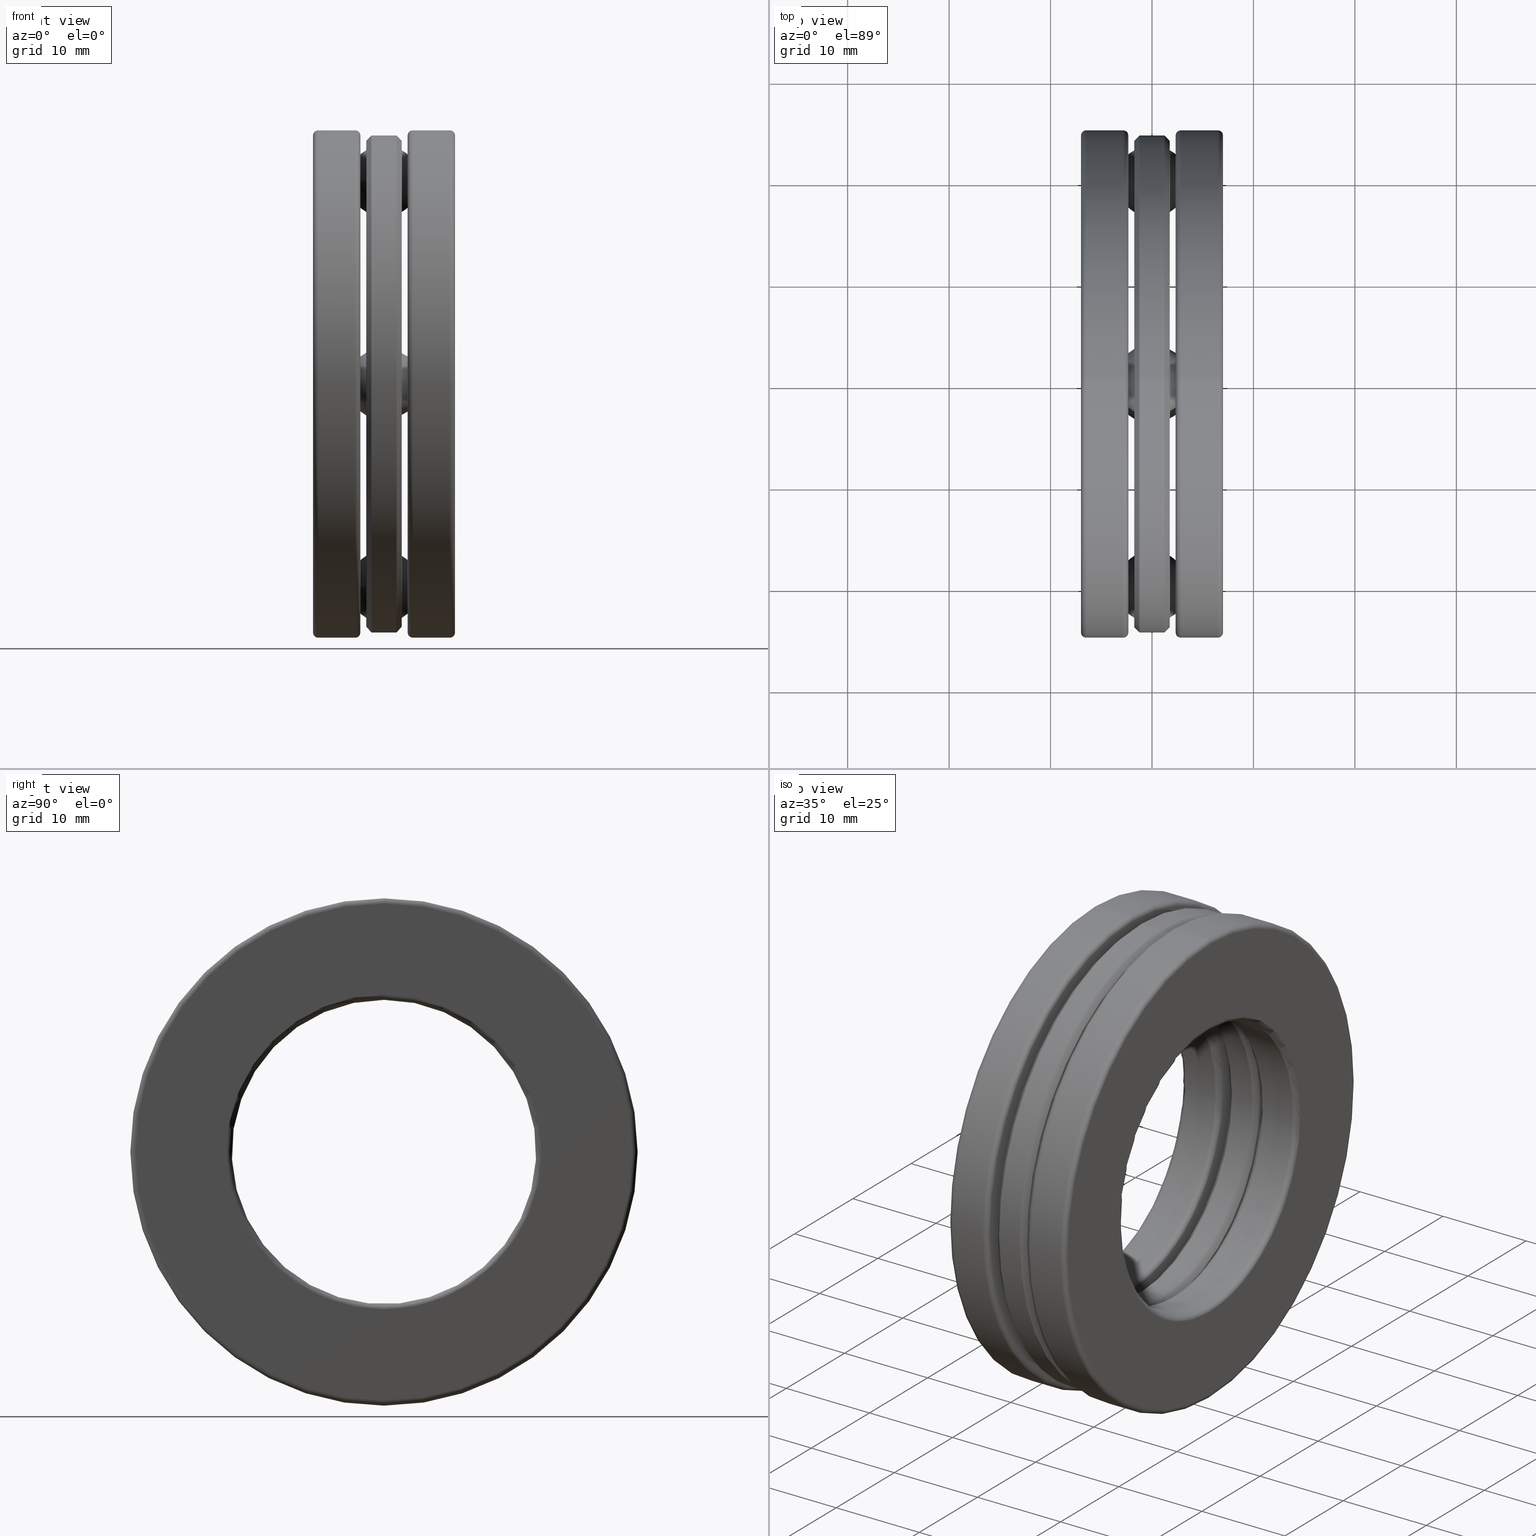
[diagram: canonical four-view strip — front | top / right | iso, engineering-drawing reading convention]
A machine part, canonical four-view strip (front | top / right | iso — engineering-drawing reading convention). The complete STEP part file that produces these views, byte-faithful:
ISO-10303-21;
HEADER;
FILE_DESCRIPTION (( 'STEP AP203' ),
    '1' );
FILE_NAME ('2906-ABB.step',
    '2017-03-07T16:42:57',
    ( '' ),
    ( '' ),
    'SwSTEP 2.0',
    'SolidWorks 2017',
    '' );
FILE_SCHEMA (( 'CONFIG_CONTROL_DESIGN' ));
ENDSEC;

DATA;
#1 = AXIS2_PLACEMENT_3D ( 'NONE', #122, #575, #335 ) ;
#2 = CONICAL_SURFACE ( 'NONE', #286, 0.9444999999999999000, 0.7853981633974492800 ) ;
#3 = DIRECTION ( 'NONE',  ( 0.0000000000000000000, 0.0000000000000000000, 1.000000000000000000 ) ) ;
#4 = ADVANCED_FACE ( 'NONE', ( #150, #790 ), #740, .T. ) ;
#5 = CARTESIAN_POINT ( 'NONE',  ( -0.2555000000000000000, 0.0000000000000000000, 0.5905000000000000200 ) ) ;
#6 = AXIS2_PLACEMENT_3D ( 'NONE', #84, #599, #651 ) ;
#7 = FACE_OUTER_BOUND ( 'NONE', #177, .T. ) ;
#8 = ORIENTED_EDGE ( 'NONE', *, *, #712, .F. ) ;
#9 = FACE_BOUND ( 'NONE', #100, .T. ) ;
#10 = ADVANCED_FACE ( 'NONE', ( #684, #309 ), #226, .T. ) ;
#11 = DIRECTION ( 'NONE',  ( 0.0000000000000000000, 1.000000000000000000, -1.032657317192676000E-014 ) ) ;
#12 = DIRECTION ( 'NONE',  ( 0.0000000000000000000, 0.0000000000000000000, 1.000000000000000000 ) ) ;
#13 = DIRECTION ( 'NONE',  ( -1.000000000000000000, -0.0000000000000000000, -0.0000000000000000000 ) ) ;
#14 = PERSON_AND_ORGANIZATION ( #619, #793 ) ;
#15 = AXIS2_PLACEMENT_3D ( 'NONE', #617, #244, #502 ) ;
#16 = EDGE_CURVE ( 'NONE', #129, #129, #481, .T. ) ;
#17 = FACE_OUTER_BOUND ( 'NONE', #655, .T. ) ;
#18 = ORIENTED_EDGE ( 'NONE', *, *, #295, .T. ) ;
#19 = ORIENTED_EDGE ( 'NONE', *, *, #206, .T. ) ;
#20 = DIRECTION ( 'NONE',  ( 0.0000000000000000000, 0.0000000000000000000, -1.000000000000000000 ) ) ;
#21 = CYLINDRICAL_SURFACE ( 'NONE', #689, 0.1455000000000001000 ) ;
#22 = ORIENTED_EDGE ( 'NONE', *, *, #351, .T. ) ;
#23 = VERTEX_POINT ( 'NONE', #521 ) ;
#24 = CARTESIAN_POINT ( 'NONE',  ( -0.06887499999999999200, -0.1455000000000028500, -0.7874999999999994200 ) ) ;
#25 = CARTESIAN_POINT ( 'NONE',  ( -0.09183516999999991000, 0.0000000000000000000, 0.6104999999999999300 ) ) ;
#26 = ADVANCED_FACE ( 'NONE', ( ), #127, .T. ) ;
#27 = ADVANCED_BREP_SHAPE_REPRESENTATION ( '2906-ABB', ( #463, #500, #522, #66, #268, #604, #411, #544 ), #340 ) ;
#28 = AXIS2_PLACEMENT_3D ( 'NONE', #203, #591, #467 ) ;
#29 = PLANE ( 'NONE',  #562 ) ;
#30 = DIRECTION ( 'NONE',  ( 0.0000000000000000000, 0.0000000000000000000, 1.000000000000000000 ) ) ;
#31 = CIRCLE ( 'NONE', #598, 0.6105000000000000400 ) ;
#32 = AXIS2_PLACEMENT_3D ( 'NONE', #266, #514, #132 ) ;
#33 = VERTEX_POINT ( 'NONE', #349 ) ;
#34 = ORIENTED_EDGE ( 'NONE', *, *, #773, .F. ) ;
#35 = CIRCLE ( 'NONE', #686, 0.9645000000000001400 ) ;
#36 = CARTESIAN_POINT ( 'NONE',  ( -0.09183516999999991000, -1.771749469719744800E-017, 0.0000000000000000000 ) ) ;
#37 = CARTESIAN_POINT ( 'NONE',  ( -0.06887500000000003300, 0.0000000000000000000, 0.0000000000000000000 ) ) ;
#38 = FACE_BOUND ( 'NONE', #278, .T. ) ;
#39 = DIRECTION ( 'NONE',  ( 0.0000000000000000000, 0.0000000000000000000, 1.000000000000000000 ) ) ;
#40 = SPHERICAL_SURFACE ( 'NONE', #789, 0.1405000000000001200 ) ;
#41 = EDGE_LOOP ( 'NONE', ( #57 ) ) ;
#42 = EDGE_LOOP ( 'NONE', ( #460 ) ) ;
#43 = DIRECTION ( 'NONE',  ( 0.0000000000000000000, 0.0000000000000000000, 1.000000000000000000 ) ) ;
#44 = AXIS2_PLACEMENT_3D ( 'NONE', #246, #567, #685 ) ;
#45 = DIRECTION ( 'NONE',  ( 1.000000000000000000, 0.0000000000000000000, 0.0000000000000000000 ) ) ;
#46 = EDGE_LOOP ( 'NONE', ( #220 ) ) ;
#47 = EDGE_LOOP ( 'NONE', ( #398 ) ) ;
#48 = CIRCLE ( 'NONE', #750, 0.1455000000000001000 ) ;
#49 = VERTEX_POINT ( 'NONE', #529 ) ;
#50 = ORIENTED_EDGE ( 'NONE', *, *, #166, .T. ) ;
#51 = CARTESIAN_POINT ( 'NONE',  ( 0.2755000000000001300, 1.063028421263425600E-016, 0.0000000000000000000 ) ) ;
#52 = AXIS2_PLACEMENT_3D ( 'NONE', #169, #795, #310 ) ;
#53 = PERSON_AND_ORGANIZATION ( #619, #793 ) ;
#54 = APPLICATION_PROTOCOL_DEFINITION ( 'international standard', 'config_control_design', 1994, #814 ) ;
#55 = AXIS2_PLACEMENT_3D ( 'NONE', #682, #45, #389 ) ;
#56 = SECURITY_CLASSIFICATION_LEVEL ( 'unclassified' ) ;
#57 = ORIENTED_EDGE ( 'NONE', *, *, #448, .F. ) ;
#58 = EDGE_CURVE ( 'NONE', #601, #601, #663, .T. ) ;
#59 = CARTESIAN_POINT ( 'NONE',  ( 0.06887500000000000600, -0.7874999999999999800, 0.1455000000000001000 ) ) ;
#60 = PERSON_AND_ORGANIZATION_ROLE ( 'classification_officer' ) ;
#61 = FACE_OUTER_BOUND ( 'NONE', #523, .T. ) ;
#62 = ORIENTED_EDGE ( 'NONE', *, *, #462, .F. ) ;
#63 = VERTEX_POINT ( 'NONE', #25 ) ;
#64 = CARTESIAN_POINT ( 'NONE',  ( -0.2555000000000000600, 0.0000000000000000000, 0.9845000000000001500 ) ) ;
#65 = EDGE_LOOP ( 'NONE', ( #19 ) ) ;
#66 = MANIFOLD_SOLID_BREP ( 'CirPattern4[1]', #373 ) ;
#67 = FACE_OUTER_BOUND ( 'NONE', #735, .T. ) ;
#68 = VERTEX_POINT ( 'NONE', #816 ) ;
#69 = AXIS2_PLACEMENT_3D ( 'NONE', #443, #109, #746 ) ;
#70 = CARTESIAN_POINT ( 'NONE',  ( 0.09183517000000039600, 0.0000000000000000000, 0.8938322695660685400 ) ) ;
#71 = CIRCLE ( 'NONE', #52, 0.6305000000000000600 ) ;
#72 = EDGE_LOOP ( 'NONE', ( #357 ) ) ;
#73 = CC_DESIGN_DATE_AND_TIME_ASSIGNMENT ( #89, #628, ( #381 ) ) ;
#74 = FACE_OUTER_BOUND ( 'NONE', #697, .T. ) ;
#75 = ADVANCED_FACE ( 'NONE', ( #822, #375 ), #21, .F. ) ;
#76 = TOROIDAL_SURFACE ( 'NONE', #392, 0.6105000000000000400, 0.01999999999999982000 ) ;
#77 = PLANE ( 'NONE',  #240 ) ;
#78 = EDGE_CURVE ( 'NONE', #586, #586, #364, .T. ) ;
#79 = CARTESIAN_POINT ( 'NONE',  ( 0.09183517000000042400, 0.0000000000000000000, 0.0000000000000000000 ) ) ;
#80 = EDGE_CURVE ( 'NONE', #400, #400, #525, .T. ) ;
#81 = FACE_OUTER_BOUND ( 'NONE', #272, .T. ) ;
#82 = EDGE_LOOP ( 'NONE', ( #121 ) ) ;
#83 = TOROIDAL_SURFACE ( 'NONE', #44, 0.9645000000000000200, 0.02000000000000002500 ) ;
#84 = CARTESIAN_POINT ( 'NONE',  ( 0.2755000000000001900, 0.0000000000000000000, 0.0000000000000000000 ) ) ;
#85 = ORIENTED_EDGE ( 'NONE', *, *, #462, .T. ) ;
#86 = CALENDAR_DATE ( 2017, 7, 3 ) ;
#87 = DIRECTION ( 'NONE',  ( 0.0000000000000000000, 0.0000000000000000000, 1.000000000000000000 ) ) ;
#88 = DIRECTION ( 'NONE',  ( -1.000000000000000000, -0.0000000000000000000, -0.0000000000000000000 ) ) ;
#89 = DATE_AND_TIME ( #322, #296 ) ;
#90 = AXIS2_PLACEMENT_3D ( 'NONE', #193, #391, #20 ) ;
#91 = CIRCLE ( 'NONE', #249, 0.6105000000000000400 ) ;
#92 = ADVANCED_FACE ( 'NONE', ( #678, #204 ), #393, .T. ) ;
#93 = DIRECTION ( 'NONE',  ( 0.0000000000000000000, -1.000000000000000000, 3.755117517064276800E-015 ) ) ;
#94 = PLANE ( 'NONE',  #625 ) ;
#95 = EDGE_LOOP ( 'NONE', ( #592 ) ) ;
#96 = AXIS2_PLACEMENT_3D ( 'NONE', #330, #262, #753 ) ;
#97 = ORIENTED_EDGE ( 'NONE', *, *, #347, .T. ) ;
#98 = CIRCLE ( 'NONE', #801, 0.5905000000000000200 ) ;
#99 = VERTEX_POINT ( 'NONE', #70 ) ;
#100 = EDGE_LOOP ( 'NONE', ( #277 ) ) ;
#101 = LENGTH_MEASURE_WITH_UNIT ( LENGTH_MEASURE( 0.02539999999999999900 ), #527 );
#102 = DIRECTION ( 'NONE',  ( -1.000000000000000000, -0.0000000000000000000, -0.0000000000000000000 ) ) ;
#103 = DIRECTION ( 'NONE',  ( 0.0000000000000000000, 0.0000000000000000000, 1.000000000000000000 ) ) ;
#104 = FACE_OUTER_BOUND ( 'NONE', #638, .T. ) ;
#105 =( CONVERSION_BASED_UNIT ( 'INCH', #101 ) LENGTH_UNIT ( ) NAMED_UNIT ( #666 ) );
#106 = FACE_OUTER_BOUND ( 'NONE', #552, .T. ) ;
#107 = DIRECTION ( 'NONE',  ( 0.0000000000000000000, 0.0000000000000000000, -1.000000000000000000 ) ) ;
#108 = DIRECTION ( 'NONE',  ( 0.0000000000000000000, 0.0000000000000000000, 1.000000000000000000 ) ) ;
#109 = DIRECTION ( 'NONE',  ( -1.000000000000000000, -0.0000000000000000000, -0.0000000000000000000 ) ) ;
#110 = CYLINDRICAL_SURFACE ( 'NONE', #300, 0.5905000000000000200 ) ;
#111 = AXIS2_PLACEMENT_3D ( 'NONE', #182, #674, #321 ) ;
#112 = VERTEX_POINT ( 'NONE', #297 ) ;
#113 = ORIENTED_EDGE ( 'NONE', *, *, #163, .F. ) ;
#114 = EDGE_CURVE ( 'NONE', #224, #224, #31, .T. ) ;
#115 = DIRECTION ( 'NONE',  ( 0.0000000000000000000, 0.0000000000000000000, 1.000000000000000000 ) ) ;
#116 = EDGE_CURVE ( 'NONE', #699, #699, #716, .T. ) ;
#117 =( NAMED_UNIT ( * ) PLANE_ANGLE_UNIT ( ) SI_UNIT ( $, .RADIAN. ) );
#118 = DIRECTION ( 'NONE',  ( 0.0000000000000000000, 0.0000000000000000000, 1.000000000000000000 ) ) ;
#119 = ORIENTED_EDGE ( 'NONE', *, *, #386, .F. ) ;
#120 = ORIENTED_EDGE ( 'NONE', *, *, #702, .F. ) ;
#121 = ORIENTED_EDGE ( 'NONE', *, *, #646, .T. ) ;
#122 = CARTESIAN_POINT ( 'NONE',  ( 0.06887500000000000600, 0.7874999999999999800, 0.0000000000000000000 ) ) ;
#123 = CARTESIAN_POINT ( 'NONE',  ( -0.1118351699999999700, 0.0000000000000000000, 0.0000000000000000000 ) ) ;
#124 = FACE_OUTER_BOUND ( 'NONE', #185, .T. ) ;
#125 = EDGE_LOOP ( 'NONE', ( #635 ) ) ;
#126 = VERTEX_POINT ( 'NONE', #818 ) ;
#127 = SPHERICAL_SURFACE ( 'NONE', #466, 0.1405000000000001200 ) ;
#128 = CC_DESIGN_APPROVAL ( #770, ( #381 ) ) ;
#129 = VERTEX_POINT ( 'NONE', #374 ) ;
#130 = APPROVAL_ROLE ( '' ) ;
#131 = DIRECTION ( 'NONE',  ( 0.0000000000000000000, 0.0000000000000000000, 1.000000000000000000 ) ) ;
#132 = DIRECTION ( 'NONE',  ( 0.0000000000000000000, 0.0000000000000000000, 1.000000000000000000 ) ) ;
#133 = CARTESIAN_POINT ( 'NONE',  ( 0.06887499999999999200, 0.0000000000000000000, 0.0000000000000000000 ) ) ;
#134 = AXIS2_PLACEMENT_3D ( 'NONE', #442, #191, #571 ) ;
#135 = APPLICATION_PROTOCOL_DEFINITION ( 'international standard', 'config_control_design', 1994, #751 ) ;
#136 = CYLINDRICAL_SURFACE ( 'NONE', #434, 0.9644999999999999100 ) ;
#137 = EDGE_LOOP ( 'NONE', ( #796 ) ) ;
#138 = APPROVAL_DATE_TIME ( #636, #770 ) ;
#139 = CARTESIAN_POINT ( 'NONE',  ( -0.06887499999999999200, 0.7874999999999999800, -0.1455000000000001000 ) ) ;
#140 = CARTESIAN_POINT ( 'NONE',  ( -0.1118351699999998900, 0.0000000000000000000, 0.0000000000000000000 ) ) ;
#141 = CARTESIAN_POINT ( 'NONE',  ( 3.414809992080329000E-017, -2.749541554338967500E-015, -0.7874999999999999800 ) ) ;
#142 = DIRECTION ( 'NONE',  ( -1.000000000000000000, -0.0000000000000000000, -0.0000000000000000000 ) ) ;
#143 = FACE_OUTER_BOUND ( 'NONE', #706, .T. ) ;
#144 = AXIS2_PLACEMENT_3D ( 'NONE', #141, #274, #700 ) ;
#145 = EDGE_LOOP ( 'NONE', ( #778 ) ) ;
#146 = CARTESIAN_POINT ( 'NONE',  ( 0.1118351700000003900, 0.0000000000000000000, 0.9845000000000001500 ) ) ;
#147 = ADVANCED_FACE ( 'NONE', ( #341, #234 ), #691, .F. ) ;
#148 = EDGE_LOOP ( 'NONE', ( #708 ) ) ;
#149 = ORIENTED_EDGE ( 'NONE', *, *, #610, .F. ) ;
#150 = FACE_OUTER_BOUND ( 'NONE', #561, .T. ) ;
#151 = ADVANCED_FACE ( 'NONE', ( #279, #584 ), #110, .F. ) ;
#152 = EDGE_LOOP ( 'NONE', ( #85 ) ) ;
#153 = AXIS2_PLACEMENT_3D ( 'NONE', #410, #88, #602 ) ;
#154 = FACE_OUTER_BOUND ( 'NONE', #42, .T. ) ;
#155 = DIRECTION ( 'NONE',  ( 0.0000000000000000000, 0.0000000000000000000, 1.000000000000000000 ) ) ;
#156 = FACE_OUTER_BOUND ( 'NONE', #637, .T. ) ;
#157 = CARTESIAN_POINT ( 'NONE',  ( 0.06887500000000000600, -0.7874999999999999800, 0.0000000000000000000 ) ) ;
#158 = LOCAL_TIME ( 11, 42, 57.00000000000000000, #367 ) ;
#159 = CARTESIAN_POINT ( 'NONE',  ( -0.06887499999999999200, 0.0000000000000000000, 0.6305000000000000600 ) ) ;
#160 = AXIS2_PLACEMENT_3D ( 'NONE', #133, #326, #749 ) ;
#161 = PERSON_AND_ORGANIZATION ( #619, #793 ) ;
#162 = PERSON_AND_ORGANIZATION ( #619, #793 ) ;
#163 = EDGE_CURVE ( 'NONE', #763, #763, #399, .T. ) ;
#164 = EDGE_LOOP ( 'NONE', ( #149 ) ) ;
#165 = CARTESIAN_POINT ( 'NONE',  ( -0.06887499999999999200, 0.1455000000000083400, 0.7874999999999985300 ) ) ;
#166 = EDGE_CURVE ( 'NONE', #439, #439, #48, .T. ) ;
#167 = DIRECTION ( 'NONE',  ( 1.000000000000000000, 0.0000000000000000000, 0.0000000000000000000 ) ) ;
#168 = ADVANCED_FACE ( 'NONE', ( #777, #265 ), #136, .T. ) ;
#169 = CARTESIAN_POINT ( 'NONE',  ( -0.06887499999999999200, 0.0000000000000000000, 0.0000000000000000000 ) ) ;
#170 = CLOSED_SHELL ( 'NONE', ( #303, #250, #10, #171, #284, #405, #180, #151, #319, #222 ) ) ;
#171 = ADVANCED_FACE ( 'NONE', ( #7, #124 ), #690, .T. ) ;
#172 = CC_DESIGN_DATE_AND_TIME_ASSIGNMENT ( #217, #344, ( #456 ) ) ;
#173 = DIRECTION ( 'NONE',  ( -1.000000000000000000, -0.0000000000000000000, -0.0000000000000000000 ) ) ;
#174 = CIRCLE ( 'NONE', #328, 0.1455000000000001000 ) ;
#175 = CYLINDRICAL_SURFACE ( 'NONE', #404, 0.1455000000000001000 ) ;
#176 = CARTESIAN_POINT ( 'NONE',  ( -0.09183516999999992400, 0.0000000000000000000, 0.0000000000000000000 ) ) ;
#177 = EDGE_LOOP ( 'NONE', ( #769 ) ) ;
#178 = AXIS2_PLACEMENT_3D ( 'NONE', #350, #449, #243 ) ;
#179 = CARTESIAN_POINT ( 'NONE',  ( -0.1118351699999998900, 0.0000000000000000000, 0.5905000000000000200 ) ) ;
#180 = ADVANCED_FACE ( 'NONE', ( #251, #61 ), #304, .T. ) ;
#181 = DIRECTION ( 'NONE',  ( 0.0000000000000000000, -1.000000000000000000, 3.755117517064276800E-015 ) ) ;
#182 = CARTESIAN_POINT ( 'NONE',  ( 0.09183517000000036800, 0.0000000000000000000, 0.0000000000000000000 ) ) ;
#183 = DIRECTION ( 'NONE',  ( -1.000000000000000000, -0.0000000000000000000, -0.0000000000000000000 ) ) ;
#184 = FACE_OUTER_BOUND ( 'NONE', #46, .T. ) ;
#185 = EDGE_LOOP ( 'NONE', ( #583 ) ) ;
#186 = EDGE_LOOP ( 'NONE', ( #406 ) ) ;
#187 = DIRECTION ( 'NONE',  ( -1.000000000000000000, -0.0000000000000000000, -0.0000000000000000000 ) ) ;
#188 = DIRECTION ( 'NONE',  ( -1.000000000000000000, -0.0000000000000000000, -0.0000000000000000000 ) ) ;
#189 = DIRECTION ( 'NONE',  ( 0.0000000000000000000, 0.0000000000000000000, 1.000000000000000000 ) ) ;
#190 = AXIS2_PLACEMENT_3D ( 'NONE', #553, #784, #536 ) ;
#191 = DIRECTION ( 'NONE',  ( -1.000000000000000000, -0.0000000000000000000, -0.0000000000000000000 ) ) ;
#192 = AXIS2_PLACEMENT_3D ( 'NONE', #255, #627, #679 ) ;
#193 = CARTESIAN_POINT ( 'NONE',  ( -0.2755000000000000200, -5.315142106317119500E-017, 0.0000000000000000000 ) ) ;
#194 = DIRECTION ( 'NONE',  ( 0.0000000000000000000, 0.0000000000000000000, 1.000000000000000000 ) ) ;
#195 = ORIENTED_EDGE ( 'NONE', *, *, #407, .T. ) ;
#196 = DIRECTION ( 'NONE',  ( 0.0000000000000000000, 0.0000000000000000000, -1.000000000000000000 ) ) ;
#197 = AXIS2_PLACEMENT_3D ( 'NONE', #774, #413, #12 ) ;
#198 = APPROVAL_ROLE ( '' ) ;
#199 = AXIS2_PLACEMENT_3D ( 'NONE', #378, #183, #327 ) ;
#200 = CIRCLE ( 'NONE', #6, 0.6105000000000000400 ) ;
#201 = ORIENTED_EDGE ( 'NONE', *, *, #293, .T. ) ;
#202 = CARTESIAN_POINT ( 'NONE',  ( 0.09183517000000043800, 0.0000000000000000000, 0.6104999999999999300 ) ) ;
#203 = CARTESIAN_POINT ( 'NONE',  ( 0.09183517000000039600, 0.0000000000000000000, 0.0000000000000000000 ) ) ;
#204 = FACE_OUTER_BOUND ( 'NONE', #576, .T. ) ;
#205 = ORIENTED_EDGE ( 'NONE', *, *, #293, .F. ) ;
#206 = EDGE_CURVE ( 'NONE', #253, #253, #478, .T. ) ;
#207 = LOCAL_TIME ( 11, 42, 57.00000000000000000, #732 ) ;
#208 = DIRECTION ( 'NONE',  ( -1.000000000000000000, -0.0000000000000000000, -0.0000000000000000000 ) ) ;
#209 = FACE_OUTER_BOUND ( 'NONE', #65, .T. ) ;
#210 = AXIS2_PLACEMENT_3D ( 'NONE', #287, #775, #359 ) ;
#211 = DIRECTION ( 'NONE',  ( 0.0000000000000000000, 0.0000000000000000000, -1.000000000000000000 ) ) ;
#212 = EDGE_LOOP ( 'NONE', ( #62 ) ) ;
#213 = FACE_OUTER_BOUND ( 'NONE', #186, .T. ) ;
#214 = CARTESIAN_POINT ( 'NONE',  ( 0.06887500000000000600, 9.362859801135874900E-018, 0.0000000000000000000 ) ) ;
#215 = EDGE_CURVE ( 'NONE', #63, #63, #614, .T. ) ;
#216 = DIRECTION ( 'NONE',  ( -1.000000000000000000, -0.0000000000000000000, -0.0000000000000000000 ) ) ;
#217 = DATE_AND_TIME ( #314, #403 ) ;
#218 = CARTESIAN_POINT ( 'NONE',  ( 0.2755000000000000200, 0.0000000000000000000, 0.0000000000000000000 ) ) ;
#219 = FACE_OUTER_BOUND ( 'NONE', #270, .T. ) ;
#220 = ORIENTED_EDGE ( 'NONE', *, *, #444, .T. ) ;
#221 = CARTESIAN_POINT ( 'NONE',  ( 3.414809992080329000E-017, 8.248624663016903300E-015, 0.7874999999999999800 ) ) ;
#222 = ADVANCED_FACE ( 'NONE', ( #771, #271 ), #94, .T. ) ;
#223 = FACE_OUTER_BOUND ( 'NONE', #547, .T. ) ;
#224 = VERTEX_POINT ( 'NONE', #612 ) ;
#225 = EDGE_LOOP ( 'NONE', ( #495 ) ) ;
#226 = TOROIDAL_SURFACE ( 'NONE', #534, 0.9645000000000000200, 0.02000000000000002500 ) ;
#227 = ADVANCED_FACE ( 'NONE', ( ), #40, .T. ) ;
#228 = AXIS2_PLACEMENT_3D ( 'NONE', #358, #298, #103 ) ;
#229 = CARTESIAN_POINT ( 'NONE',  ( -0.06887499999999999200, 0.0000000000000000000, 0.0000000000000000000 ) ) ;
#230 = ADVANCED_FACE ( 'NONE', ( #517, #74 ), #426, .F. ) ;
#231 = EDGE_LOOP ( 'NONE', ( #507 ) ) ;
#232 = AXIS2_PLACEMENT_3D ( 'NONE', #79, #566, #743 ) ;
#233 = DIRECTION ( 'NONE',  ( 0.0000000000000000000, 0.0000000000000000000, -1.000000000000000000 ) ) ;
#234 = FACE_OUTER_BOUND ( 'NONE', #95, .T. ) ;
#235 = VERTEX_POINT ( 'NONE', #139 ) ;
#236 = CARTESIAN_POINT ( 'NONE',  ( -0.2755000000000000800, 0.0000000000000000000, 0.9645000000000000200 ) ) ;
#237 = DIRECTION ( 'NONE',  ( -1.000000000000000000, -0.0000000000000000000, -0.0000000000000000000 ) ) ;
#238 = DIRECTION ( 'NONE',  ( 0.0000000000000000000, 0.0000000000000000000, 1.000000000000000000 ) ) ;
#239 = APPROVAL_DATE_TIME ( #283, #499 ) ;
#240 = AXIS2_PLACEMENT_3D ( 'NONE', #214, #647, #710 ) ;
#241 = DESIGN_CONTEXT ( 'detailed design', #814, 'design' ) ;
#242 = DIRECTION ( 'NONE',  ( 0.0000000000000000000, 0.0000000000000000000, 1.000000000000000000 ) ) ;
#243 = DIRECTION ( 'NONE',  ( 0.0000000000000000000, 0.0000000000000000000, 1.000000000000000000 ) ) ;
#244 = DIRECTION ( 'NONE',  ( -1.000000000000000000, -0.0000000000000000000, -0.0000000000000000000 ) ) ;
#245 = EDGE_LOOP ( 'NONE', ( #569 ) ) ;
#246 = CARTESIAN_POINT ( 'NONE',  ( -0.2555000000000000600, 0.0000000000000000000, 0.0000000000000000000 ) ) ;
#247 = DIRECTION ( 'NONE',  ( -1.000000000000000000, -0.0000000000000000000, -0.0000000000000000000 ) ) ;
#248 = ORIENTED_EDGE ( 'NONE', *, *, #318, .T. ) ;
#249 = AXIS2_PLACEMENT_3D ( 'NONE', #804, #441, #39 ) ;
#250 = ADVANCED_FACE ( 'NONE', ( #568, #154 ), #29, .T. ) ;
#251 = FACE_OUTER_BOUND ( 'NONE', #626, .T. ) ;
#252 = EDGE_CURVE ( 'NONE', #112, #112, #457, .T. ) ;
#253 = VERTEX_POINT ( 'NONE', #236 ) ;
#254 = FACE_BOUND ( 'NONE', #717, .T. ) ;
#255 = CARTESIAN_POINT ( 'NONE',  ( 0.04887500000000003000, 0.0000000000000000000, 0.0000000000000000000 ) ) ;
#256 = DIRECTION ( 'NONE',  ( -1.000000000000000000, -0.0000000000000000000, -0.0000000000000000000 ) ) ;
#257 = ADVANCED_FACE ( 'NONE', ( #538, #213 ), #670, .F. ) ;
#258 = AXIS2_PLACEMENT_3D ( 'NONE', #508, #772, #211 ) ;
#259 = CIRCLE ( 'NONE', #412, 0.9444999999999999000 ) ;
#260 = ORIENTED_EDGE ( 'NONE', *, *, #420, .F. ) ;
#261 = EDGE_LOOP ( 'NONE', ( #281 ) ) ;
#262 = DIRECTION ( 'NONE',  ( -1.000000000000000000, -0.0000000000000000000, -0.0000000000000000000 ) ) ;
#263 = CARTESIAN_POINT ( 'NONE',  ( -0.2755393700787402400, 0.7874999999999999800, 0.0000000000000000000 ) ) ;
#264 = AXIS2_PLACEMENT_3D ( 'NONE', #482, #473, #542 ) ;
#265 = FACE_OUTER_BOUND ( 'NONE', #701, .T. ) ;
#266 = CARTESIAN_POINT ( 'NONE',  ( -0.09183516999999998000, 0.0000000000000000000, 0.0000000000000000000 ) ) ;
#267 = EDGE_CURVE ( 'NONE', #737, #737, #355, .T. ) ;
#268 = MANIFOLD_SOLID_BREP ( 'CirPattern4[2]', #325 ) ;
#269 = CIRCLE ( 'NONE', #199, 0.8938322695660686500 ) ;
#270 = EDGE_LOOP ( 'NONE', ( #113 ) ) ;
#271 = FACE_OUTER_BOUND ( 'NONE', #494, .T. ) ;
#272 = EDGE_LOOP ( 'NONE', ( #22 ) ) ;
#273 = FACE_OUTER_BOUND ( 'NONE', #47, .T. ) ;
#274 = DIRECTION ( 'NONE',  ( 0.0000000000000000000, 1.000000000000000000, -3.491481338843133400E-015 ) ) ;
#275 = COORDINATED_UNIVERSAL_TIME_OFFSET ( 5, 0, .BEHIND. ) ;
#276 = AXIS2_PLACEMENT_3D ( 'NONE', #490, #613, #723 ) ;
#277 = ORIENTED_EDGE ( 'NONE', *, *, #58, .T. ) ;
#278 = EDGE_LOOP ( 'NONE', ( #201 ) ) ;
#279 = FACE_OUTER_BOUND ( 'NONE', #474, .T. ) ;
#280 = AXIS2_PLACEMENT_3D ( 'NONE', #302, #722, #609 ) ;
#281 = ORIENTED_EDGE ( 'NONE', *, *, #491, .F. ) ;
#282 = CARTESIAN_POINT ( 'NONE',  ( -0.04887500000000000900, 0.0000000000000000000, 0.9644999999999999100 ) ) ;
#283 = DATE_AND_TIME ( #450, #207 ) ;
#284 = ADVANCED_FACE ( 'NONE', ( #633, #560 ), #83, .T. ) ;
#285 = COORDINATED_UNIVERSAL_TIME_OFFSET ( 5, 0, .BEHIND. ) ;
#286 = AXIS2_PLACEMENT_3D ( 'NONE', #427, #669, #233 ) ;
#287 = CARTESIAN_POINT ( 'NONE',  ( -0.1118351699999999700, 0.0000000000000000000, 0.0000000000000000000 ) ) ;
#288 = FACE_BOUND ( 'NONE', #788, .T. ) ;
#289 = ORIENTED_EDGE ( 'NONE', *, *, #506, .T. ) ;
#290 = DIRECTION ( 'NONE',  ( -1.000000000000000000, -0.0000000000000000000, -0.0000000000000000000 ) ) ;
#291 = ORIENTED_EDGE ( 'NONE', *, *, #386, .T. ) ;
#292 = CIRCLE ( 'NONE', #725, 0.9644999999999999100 ) ;
#293 = EDGE_CURVE ( 'NONE', #366, #366, #762, .T. ) ;
#294 = CARTESIAN_POINT ( 'NONE',  ( 0.0000000000000000000, 0.0000000000000000000, 0.0000000000000000000 ) ) ;
#295 = EDGE_CURVE ( 'NONE', #641, #641, #394, .T. ) ;
#296 = LOCAL_TIME ( 11, 42, 57.00000000000000000, #275 ) ;
#297 = CARTESIAN_POINT ( 'NONE',  ( -0.09183516999999992400, 0.0000000000000000000, 0.6811677304339313100 ) ) ;
#298 = DIRECTION ( 'NONE',  ( -1.000000000000000000, -0.0000000000000000000, -0.0000000000000000000 ) ) ;
#299 = CARTESIAN_POINT ( 'NONE',  ( 0.2755000000000000200, 0.0000000000000000000, 0.9645000000000001400 ) ) ;
#300 = AXIS2_PLACEMENT_3D ( 'NONE', #294, #208, #645 ) ;
#301 = CARTESIAN_POINT ( 'NONE',  ( 0.06887500000000000600, -0.1455000000000028500, -0.7874999999999994200 ) ) ;
#302 = CARTESIAN_POINT ( 'NONE',  ( 0.09183517000000039600, 1.771749469719759900E-017, 0.0000000000000000000 ) ) ;
#303 = ADVANCED_FACE ( 'NONE', ( #496, #577 ), #696, .F. ) ;
#304 = TOROIDAL_SURFACE ( 'NONE', #422, 0.6105000000000000400, 0.01999999999999997600 ) ;
#305 = ORIENTED_EDGE ( 'NONE', *, *, #444, .F. ) ;
#306 = CARTESIAN_POINT ( 'NONE',  ( 0.06887499999999999200, 0.0000000000000000000, 0.9444999999999999000 ) ) ;
#307 = DIRECTION ( 'NONE',  ( -1.000000000000000000, -0.0000000000000000000, -0.0000000000000000000 ) ) ;
#308 = VERTEX_POINT ( 'NONE', #767 ) ;
#309 = FACE_OUTER_BOUND ( 'NONE', #137, .T. ) ;
#310 = DIRECTION ( 'NONE',  ( 0.0000000000000000000, 0.0000000000000000000, 1.000000000000000000 ) ) ;
#311 = CIRCLE ( 'NONE', #531, 0.1455000000000001000 ) ;
#312 = VERTEX_POINT ( 'NONE', #159 ) ;
#313 = AXIS2_PLACEMENT_3D ( 'NONE', #221, #361, #471 ) ;
#314 = CALENDAR_DATE ( 2017, 7, 3 ) ;
#315 = DIRECTION ( 'NONE',  ( 0.0000000000000000000, 0.0000000000000000000, -1.000000000000000000 ) ) ;
#316 = DIRECTION ( 'NONE',  ( 0.0000000000000000000, 0.0000000000000000000, 1.000000000000000000 ) ) ;
#317 = EDGE_LOOP ( 'NONE', ( #468 ) ) ;
#318 = EDGE_CURVE ( 'NONE', #683, #683, #383, .T. ) ;
#319 = ADVANCED_FACE ( 'NONE', ( #600, #223 ), #551, .T. ) ;
#320 = ORIENTED_EDGE ( 'NONE', *, *, #351, .F. ) ;
#321 = DIRECTION ( 'NONE',  ( 0.0000000000000000000, 0.0000000000000000000, 1.000000000000000000 ) ) ;
#322 = CALENDAR_DATE ( 2017, 7, 3 ) ;
#323 = TOROIDAL_SURFACE ( 'NONE', #153, 0.7874999999999999800, 0.1405000000000001200 ) ;
#324 = SPHERICAL_SURFACE ( 'NONE', #144, 0.1405000000000001200 ) ;
#325 = CLOSED_SHELL ( 'NONE', ( #227 ) ) ;
#326 = DIRECTION ( 'NONE',  ( -1.000000000000000000, -0.0000000000000000000, -0.0000000000000000000 ) ) ;
#327 = DIRECTION ( 'NONE',  ( 0.0000000000000000000, 0.0000000000000000000, 1.000000000000000000 ) ) ;
#328 = AXIS2_PLACEMENT_3D ( 'NONE', #157, #718, #238 ) ;
#329 = EDGE_LOOP ( 'NONE', ( #435 ) ) ;
#330 = CARTESIAN_POINT ( 'NONE',  ( 0.1118351700000003900, 0.0000000000000000000, 0.0000000000000000000 ) ) ;
#331 = DIRECTION ( 'NONE',  ( -1.000000000000000000, -0.0000000000000000000, -0.0000000000000000000 ) ) ;
#332 = VERTEX_POINT ( 'NONE', #64 ) ;
#333 = DIRECTION ( 'NONE',  ( 0.0000000000000000000, -1.000000000000000000, 3.755117517064276800E-015 ) ) ;
#334 = VERTEX_POINT ( 'NONE', #299 ) ;
#335 = DIRECTION ( 'NONE',  ( 0.0000000000000000000, 0.0000000000000000000, -1.000000000000000000 ) ) ;
#336 = AXIS2_PLACEMENT_3D ( 'NONE', #799, #504, #189 ) ;
#337 = MECHANICAL_CONTEXT ( 'NONE', #751, 'mechanical' ) ;
#338 = DIRECTION ( 'NONE',  ( 0.0000000000000000000, 0.0000000000000000000, -1.000000000000000000 ) ) ;
#339 = CARTESIAN_POINT ( 'NONE',  ( 0.0000000000000000000, 0.0000000000000000000, 0.0000000000000000000 ) ) ;
#340 =( GEOMETRIC_REPRESENTATION_CONTEXT ( 3 ) GLOBAL_UNCERTAINTY_ASSIGNED_CONTEXT ( ( #360 ) ) GLOBAL_UNIT_ASSIGNED_CONTEXT ( ( #105, #117, #747 ) ) REPRESENTATION_CONTEXT ( 'NONE', 'WORKASPACE' ) );
#341 = FACE_BOUND ( 'NONE', #785, .T. ) ;
#342 = EDGE_LOOP ( 'NONE', ( #661 ) ) ;
#343 = FACE_OUTER_BOUND ( 'NONE', #225, .T. ) ;
#344 = DATE_TIME_ROLE ( 'creation_date' ) ;
#345 = CARTESIAN_POINT ( 'NONE',  ( 0.2555000000000005000, 0.0000000000000000000, 0.9845000000000001500 ) ) ;
#346 = CC_DESIGN_APPROVAL ( #429, ( #573 ) ) ;
#347 = EDGE_CURVE ( 'NONE', #707, #707, #98, .T. ) ;
#348 = EDGE_LOOP ( 'NONE', ( #119 ) ) ;
#349 = CARTESIAN_POINT ( 'NONE',  ( -0.2755000000000000200, 0.0000000000000000000, 0.6105000000000000400 ) ) ;
#350 = CARTESIAN_POINT ( 'NONE',  ( 0.0000000000000000000, 0.0000000000000000000, 0.0000000000000000000 ) ) ;
#351 = EDGE_CURVE ( 'NONE', #808, #808, #445, .T. ) ;
#352 = EDGE_LOOP ( 'NONE', ( #390 ) ) ;
#353 = DATE_AND_TIME ( #512, #824 ) ;
#354 = AXIS2_PLACEMENT_3D ( 'NONE', #711, #715, #781 ) ;
#355 = CIRCLE ( 'NONE', #1, 0.1455000000000001000 ) ;
#356 = EDGE_CURVE ( 'NONE', #308, #308, #755, .T. ) ;
#357 = ORIENTED_EDGE ( 'NONE', *, *, #206, .F. ) ;
#358 = CARTESIAN_POINT ( 'NONE',  ( 0.1118351700000004600, 0.0000000000000000000, 0.0000000000000000000 ) ) ;
#359 = DIRECTION ( 'NONE',  ( 0.0000000000000000000, 0.0000000000000000000, 1.000000000000000000 ) ) ;
#360 = UNCERTAINTY_MEASURE_WITH_UNIT (LENGTH_MEASURE( 1.000000000000000100E-005 ), #105, 'distance_accuracy_value', 'NONE');
#361 = DIRECTION ( 'NONE',  ( 0.0000000000000000000, -1.000000000000000000, 1.047444401652939800E-014 ) ) ;
#362 = EDGE_LOOP ( 'NONE', ( #821 ) ) ;
#363 = CARTESIAN_POINT ( 'NONE',  ( 0.09183517000000042400, 0.0000000000000000000, 0.6811677304339314200 ) ) ;
#364 = CIRCLE ( 'NONE', #372, 0.5905000000000000200 ) ;
#365 = EDGE_LOOP ( 'NONE', ( #205 ) ) ;
#366 = VERTEX_POINT ( 'NONE', #720 ) ;
#367 = COORDINATED_UNIVERSAL_TIME_OFFSET ( 5, 0, .BEHIND. ) ;
#368 = CARTESIAN_POINT ( 'NONE',  ( -0.2755000000000000800, 0.0000000000000000000, 0.0000000000000000000 ) ) ;
#369 = ADVANCED_FACE ( 'NONE', ( #727, #611 ), #703, .F. ) ;
#370 = CARTESIAN_POINT ( 'NONE',  ( 0.1118351700000004600, 0.0000000000000000000, 0.5905000000000000200 ) ) ;
#371 = FACE_OUTER_BOUND ( 'NONE', #475, .T. ) ;
#372 = AXIS2_PLACEMENT_3D ( 'NONE', #754, #388, #385 ) ;
#373 = CLOSED_SHELL ( 'NONE', ( #423 ) ) ;
#374 = CARTESIAN_POINT ( 'NONE',  ( 0.2555000000000006200, 0.0000000000000000000, 0.5905000000000000200 ) ) ;
#375 = FACE_OUTER_BOUND ( 'NONE', #650, .T. ) ;
#376 = AXIS2_PLACEMENT_3D ( 'NONE', #564, #802, #108 ) ;
#377 = DIRECTION ( 'NONE',  ( 0.0000000000000000000, 0.0000000000000000000, 1.000000000000000000 ) ) ;
#378 = CARTESIAN_POINT ( 'NONE',  ( -0.09183516999999996600, 0.0000000000000000000, 0.0000000000000000000 ) ) ;
#379 = CIRCLE ( 'NONE', #28, 0.8938322695660685400 ) ;
#380 = EDGE_LOOP ( 'NONE', ( #757 ) ) ;
#381 = SECURITY_CLASSIFICATION ( '', '', #56 ) ;
#382 = EDGE_CURVE ( 'NONE', #126, #126, #269, .T. ) ;
#383 = CIRCLE ( 'NONE', #336, 0.6305000000000000600 ) ;
#384 = ORIENTED_EDGE ( 'NONE', *, *, #382, .F. ) ;
#385 = DIRECTION ( 'NONE',  ( 0.0000000000000000000, 0.0000000000000000000, 1.000000000000000000 ) ) ;
#386 = EDGE_CURVE ( 'NONE', #33, #33, #91, .T. ) ;
#387 = DIRECTION ( 'NONE',  ( 1.000000000000000000, 0.0000000000000000000, 0.0000000000000000000 ) ) ;
#388 = DIRECTION ( 'NONE',  ( -1.000000000000000000, -0.0000000000000000000, -0.0000000000000000000 ) ) ;
#389 = DIRECTION ( 'NONE',  ( 0.0000000000000000000, 1.000000000000000000, -1.032657317192676000E-014 ) ) ;
#390 = ORIENTED_EDGE ( 'NONE', *, *, #252, .T. ) ;
#391 = DIRECTION ( 'NONE',  ( 1.000000000000000000, 0.0000000000000000000, 0.0000000000000000000 ) ) ;
#392 = AXIS2_PLACEMENT_3D ( 'NONE', #658, #102, #728 ) ;
#393 = PLANE ( 'NONE',  #396 ) ;
#394 = CIRCLE ( 'NONE', #96, 0.9845000000000001500 ) ;
#395 = EDGE_LOOP ( 'NONE', ( #738 ) ) ;
#396 = AXIS2_PLACEMENT_3D ( 'NONE', #51, #809, #196 ) ;
#397 = CARTESIAN_POINT ( 'NONE',  ( 0.2755000000000001900, 0.0000000000000000000, 0.6105000000000000400 ) ) ;
#398 = ORIENTED_EDGE ( 'NONE', *, *, #356, .F. ) ;
#399 = CIRCLE ( 'NONE', #232, 0.6811677304339314200 ) ;
#400 = VERTEX_POINT ( 'NONE', #433 ) ;
#401 = FACE_OUTER_BOUND ( 'NONE', #245, .T. ) ;
#402 = CARTESIAN_POINT ( 'NONE',  ( -0.04887500000000000900, 0.0000000000000000000, 0.0000000000000000000 ) ) ;
#403 = LOCAL_TIME ( 11, 42, 57.00000000000000000, #285 ) ;
#404 = AXIS2_PLACEMENT_3D ( 'NONE', #440, #736, #181 ) ;
#405 = ADVANCED_FACE ( 'NONE', ( #687, #209 ), #513, .F. ) ;
#406 = ORIENTED_EDGE ( 'NONE', *, *, #664, .T. ) ;
#407 = EDGE_CURVE ( 'NONE', #332, #332, #713, .T. ) ;
#408 = EDGE_LOOP ( 'NONE', ( #694 ) ) ;
#409 = PLANE ( 'NONE',  #709 ) ;
#410 = CARTESIAN_POINT ( 'NONE',  ( 3.414809992080329000E-017, 0.0000000000000000000, 0.0000000000000000000 ) ) ;
#411 = MANIFOLD_SOLID_BREP ( 'CirPattern7', #752 ) ;
#412 = AXIS2_PLACEMENT_3D ( 'NONE', #37, #247, #437 ) ;
#413 = DIRECTION ( 'NONE',  ( -1.000000000000000000, -0.0000000000000000000, -0.0000000000000000000 ) ) ;
#414 = ORIENTED_EDGE ( 'NONE', *, *, #643, .T. ) ;
#415 = ADVANCED_FACE ( 'NONE', ( #184, #565 ), #546, .T. ) ;
#416 = ORIENTED_EDGE ( 'NONE', *, *, #163, .T. ) ;
#417 = ORIENTED_EDGE ( 'NONE', *, *, #511, .F. ) ;
#418 = CC_DESIGN_PERSON_AND_ORGANIZATION_ASSIGNMENT ( #14, #60, ( #381 ) ) ;
#419 = DIRECTION ( 'NONE',  ( 0.0000000000000000000, 0.0000000000000000000, 1.000000000000000000 ) ) ;
#420 = EDGE_CURVE ( 'NONE', #99, #99, #379, .T. ) ;
#421 = DIRECTION ( 'NONE',  ( -1.000000000000000000, -0.0000000000000000000, -0.0000000000000000000 ) ) ;
#422 = AXIS2_PLACEMENT_3D ( 'NONE', #693, #446, #30 ) ;
#423 = ADVANCED_FACE ( 'NONE', ( ), #324, .T. ) ;
#424 = CIRCLE ( 'NONE', #190, 0.9845000000000001500 ) ;
#425 = ORIENTED_EDGE ( 'NONE', *, *, #506, .F. ) ;
#426 = PLANE ( 'NONE',  #280 ) ;
#427 = CARTESIAN_POINT ( 'NONE',  ( -0.06887500000000003300, 0.0000000000000000000, 0.0000000000000000000 ) ) ;
#428 = EDGE_LOOP ( 'NONE', ( #248 ) ) ;
#429 = APPROVAL ( #761, 'UNSPECIFIED' ) ;
#430 = TOROIDAL_SURFACE ( 'NONE', #629, 0.9645000000000000200, 0.02000000000000003500 ) ;
#431 = CARTESIAN_POINT ( 'NONE',  ( -0.06887499999999999200, -2.749541554338967500E-015, -0.7874999999999999800 ) ) ;
#432 = DIRECTION ( 'NONE',  ( 1.000000000000000000, 0.0000000000000000000, 0.0000000000000000000 ) ) ;
#433 = CARTESIAN_POINT ( 'NONE',  ( -0.09183516999999998000, 0.0000000000000000000, 0.9645000000000000200 ) ) ;
#434 = AXIS2_PLACEMENT_3D ( 'NONE', #780, #472, #705 ) ;
#435 = ORIENTED_EDGE ( 'NONE', *, *, #78, .T. ) ;
#436 = DIRECTION ( 'NONE',  ( 0.0000000000000000000, 0.0000000000000000000, 1.000000000000000000 ) ) ;
#437 = DIRECTION ( 'NONE',  ( 0.0000000000000000000, 0.0000000000000000000, 1.000000000000000000 ) ) ;
#438 = ADVANCED_FACE ( 'NONE', ( #81, #143 ), #590, .F. ) ;
#439 = VERTEX_POINT ( 'NONE', #301 ) ;
#440 = CARTESIAN_POINT ( 'NONE',  ( -0.2755393700787402400, -2.749541554338967500E-015, -0.7874999999999999800 ) ) ;
#441 = DIRECTION ( 'NONE',  ( -1.000000000000000000, -0.0000000000000000000, -0.0000000000000000000 ) ) ;
#442 = CARTESIAN_POINT ( 'NONE',  ( 0.2555000000000006200, 0.0000000000000000000, 0.0000000000000000000 ) ) ;
#443 = CARTESIAN_POINT ( 'NONE',  ( 0.0000000000000000000, 0.0000000000000000000, 0.0000000000000000000 ) ) ;
#444 = EDGE_CURVE ( 'NONE', #594, #594, #654, .T. ) ;
#445 = CIRCLE ( 'NONE', #55, 0.1455000000000001000 ) ;
#446 = DIRECTION ( 'NONE',  ( -1.000000000000000000, -0.0000000000000000000, -0.0000000000000000000 ) ) ;
#447 = FACE_BOUND ( 'NONE', #817, .T. ) ;
#448 = EDGE_CURVE ( 'NONE', #730, #730, #574, .T. ) ;
#449 = DIRECTION ( 'NONE',  ( -1.000000000000000000, -0.0000000000000000000, -0.0000000000000000000 ) ) ;
#450 = CALENDAR_DATE ( 2017, 7, 3 ) ;
#451 = DIRECTION ( 'NONE',  ( -1.000000000000000000, 0.0000000000000000000, 0.0000000000000000000 ) ) ;
#452 = APPROVAL_STATUS ( 'not_yet_approved' ) ;
#453 = FACE_OUTER_BOUND ( 'NONE', #719, .T. ) ;
#454 = FACE_BOUND ( 'NONE', #487, .T. ) ;
#455 = DIRECTION ( 'NONE',  ( 1.000000000000000000, 0.0000000000000000000, 0.0000000000000000000 ) ) ;
#456 = PRODUCT_DEFINITION ( 'UNKNOWN', '', #573, #241 ) ;
#457 = CIRCLE ( 'NONE', #672, 0.6811677304339313100 ) ;
#458 = ORIENTED_EDGE ( 'NONE', *, *, #712, .T. ) ;
#459 = PERSON_AND_ORGANIZATION_ROLE ( 'design_owner' ) ;
#460 = ORIENTED_EDGE ( 'NONE', *, *, #80, .F. ) ;
#461 = CC_DESIGN_SECURITY_CLASSIFICATION ( #381, ( #573 ) ) ;
#462 = EDGE_CURVE ( 'NONE', #539, #539, #424, .T. ) ;
#463 = MANIFOLD_SOLID_BREP ( 'Revolve1', #170 ) ;
#464 = SPHERICAL_SURFACE ( 'NONE', #313, 0.1405000000000001200 ) ;
#465 = TOROIDAL_SURFACE ( 'NONE', #794, 0.9645000000000001400, 0.01999999999999971900 ) ;
#466 = AXIS2_PLACEMENT_3D ( 'NONE', #516, #194, #451 ) ;
#467 = DIRECTION ( 'NONE',  ( 0.0000000000000000000, 0.0000000000000000000, 1.000000000000000000 ) ) ;
#468 = ORIENTED_EDGE ( 'NONE', *, *, #116, .F. ) ;
#469 = ADVANCED_FACE ( 'NONE', ( ), #464, .T. ) ;
#470 = AXIS2_PLACEMENT_3D ( 'NONE', #659, #13, #3 ) ;
#471 = DIRECTION ( 'NONE',  ( -1.000000000000000000, 0.0000000000000000000, 0.0000000000000000000 ) ) ;
#472 = DIRECTION ( 'NONE',  ( -1.000000000000000000, -0.0000000000000000000, -0.0000000000000000000 ) ) ;
#473 = DIRECTION ( 'NONE',  ( 1.000000000000000000, 0.0000000000000000000, 0.0000000000000000000 ) ) ;
#474 = EDGE_LOOP ( 'NONE', ( #97 ) ) ;
#475 = EDGE_LOOP ( 'NONE', ( #820 ) ) ;
#476 = AXIS2_PLACEMENT_3D ( 'NONE', #563, #667, #377 ) ;
#477 = ORIENTED_EDGE ( 'NONE', *, *, #295, .F. ) ;
#478 = CIRCLE ( 'NONE', #578, 0.9645000000000000200 ) ;
#479 = CARTESIAN_POINT ( 'NONE',  ( 0.0000000000000000000, 0.0000000000000000000, 0.0000000000000000000 ) ) ;
#480 = ADVANCED_FACE ( 'NONE', ( #748, #454, #288, #621, #768, #724 ), #77, .T. ) ;
#481 = CIRCLE ( 'NONE', #134, 0.5905000000000000200 ) ;
#482 = CARTESIAN_POINT ( 'NONE',  ( 0.06887500000000003300, 0.0000000000000000000, 0.0000000000000000000 ) ) ;
#483 = APPROVAL_DATE_TIME ( #353, #429 ) ;
#484 = EDGE_LOOP ( 'NONE', ( #50 ) ) ;
#485 = CYLINDRICAL_SURFACE ( 'NONE', #559, 0.5905000000000000200 ) ;
#486 = ADVANCED_FACE ( 'NONE', ( #106, #219 ), #323, .F. ) ;
#487 = EDGE_LOOP ( 'NONE', ( #417 ) ) ;
#488 = CC_DESIGN_APPROVAL ( #499, ( #456 ) ) ;
#489 = PERSON_AND_ORGANIZATION ( #619, #793 ) ;
#490 = CARTESIAN_POINT ( 'NONE',  ( -0.2755393700787402400, -0.7874999999999999800, 0.0000000000000000000 ) ) ;
#491 = EDGE_CURVE ( 'NONE', #68, #68, #545, .T. ) ;
#492 = FACE_OUTER_BOUND ( 'NONE', #484, .T. ) ;
#493 = FACE_OUTER_BOUND ( 'NONE', #380, .T. ) ;
#494 = EDGE_LOOP ( 'NONE', ( #549 ) ) ;
#495 = ORIENTED_EDGE ( 'NONE', *, *, #610, .T. ) ;
#496 = FACE_OUTER_BOUND ( 'NONE', #352, .T. ) ;
#497 = EDGE_LOOP ( 'NONE', ( #195 ) ) ;
#498 = ADVANCED_FACE ( 'NONE', ( #38, #493 ), #759, .F. ) ;
#499 = APPROVAL ( #520, 'UNSPECIFIED' ) ;
#500 = MANIFOLD_SOLID_BREP ( 'Revolve3', #593 ) ;
#501 = DIRECTION ( 'NONE',  ( -0.0000000000000000000, 0.0000000000000000000, -1.000000000000000000 ) ) ;
#502 = DIRECTION ( 'NONE',  ( 0.0000000000000000000, 0.0000000000000000000, 1.000000000000000000 ) ) ;
#503 = CARTESIAN_POINT ( 'NONE',  ( 3.414809992080329000E-017, 0.0000000000000000000, 0.0000000000000000000 ) ) ;
#504 = DIRECTION ( 'NONE',  ( -1.000000000000000000, -0.0000000000000000000, -0.0000000000000000000 ) ) ;
#505 = PRODUCT_RELATED_PRODUCT_CATEGORY ( 'detail', '', ( #603 ) ) ;
#506 = EDGE_CURVE ( 'NONE', #756, #756, #200, .T. ) ;
#507 = ORIENTED_EDGE ( 'NONE', *, *, #78, .F. ) ;
#508 = CARTESIAN_POINT ( 'NONE',  ( 0.09183517000000039600, 1.771749469719759900E-017, 0.0000000000000000000 ) ) ;
#509 = CARTESIAN_POINT ( 'NONE',  ( -0.2555000000000000000, 0.0000000000000000000, 0.0000000000000000000 ) ) ;
#510 = ORIENTED_EDGE ( 'NONE', *, *, #114, .F. ) ;
#511 = EDGE_CURVE ( 'NONE', #528, #528, #174, .T. ) ;
#512 = CALENDAR_DATE ( 2017, 7, 3 ) ;
#513 = PLANE ( 'NONE',  #90 ) ;
#514 = DIRECTION ( 'NONE',  ( -1.000000000000000000, -0.0000000000000000000, -0.0000000000000000000 ) ) ;
#515 = CIRCLE ( 'NONE', #588, 0.1455000000000001000 ) ;
#516 = CARTESIAN_POINT ( 'NONE',  ( 3.414809992080329000E-017, 0.7874999999999999800, 0.0000000000000000000 ) ) ;
#517 = FACE_BOUND ( 'NONE', #648, .T. ) ;
#518 = CLOSED_SHELL ( 'NONE', ( #469 ) ) ;
#519 = FACE_BOUND ( 'NONE', #660, .T. ) ;
#520 = APPROVAL_STATUS ( 'not_yet_approved' ) ;
#521 = CARTESIAN_POINT ( 'NONE',  ( -0.06887500000000003300, 0.0000000000000000000, 0.9444999999999999000 ) ) ;
#522 = MANIFOLD_SOLID_BREP ( 'Revolve4', #554 ) ;
#523 = EDGE_LOOP ( 'NONE', ( #597 ) ) ;
#524 = ORIENTED_EDGE ( 'NONE', *, *, #267, .F. ) ;
#525 = CIRCLE ( 'NONE', #32, 0.9645000000000000200 ) ;
#526 = ORIENTED_EDGE ( 'NONE', *, *, #16, .F. ) ;
#527 =( LENGTH_UNIT ( ) NAMED_UNIT ( * ) SI_UNIT ( $, .METRE. ) );
#528 = VERTEX_POINT ( 'NONE', #59 ) ;
#529 = CARTESIAN_POINT ( 'NONE',  ( 0.04887500000000000200, 0.0000000000000000000, 0.9644999999999999100 ) ) ;
#530 = VERTEX_POINT ( 'NONE', #282 ) ;
#531 = AXIS2_PLACEMENT_3D ( 'NONE', #431, #421, #93 ) ;
#532 = CARTESIAN_POINT ( 'NONE',  ( -0.2755393700787402400, 8.248624663016903300E-015, 0.7874999999999999800 ) ) ;
#533 = CARTESIAN_POINT ( 'NONE',  ( -0.06887499999999999200, -0.7874999999999999800, 0.1455000000000001000 ) ) ;
#534 = AXIS2_PLACEMENT_3D ( 'NONE', #123, #256, #118 ) ;
#535 = CARTESIAN_POINT ( 'NONE',  ( -0.06887499999999999200, 8.248624663016903300E-015, 0.7874999999999999800 ) ) ;
#536 = DIRECTION ( 'NONE',  ( 0.0000000000000000000, 0.0000000000000000000, 1.000000000000000000 ) ) ;
#537 = CARTESIAN_POINT ( 'NONE',  ( 0.06887500000000003300, 0.0000000000000000000, 0.6305000000000000600 ) ) ;
#538 = FACE_BOUND ( 'NONE', #623, .T. ) ;
#539 = VERTEX_POINT ( 'NONE', #345 ) ;
#540 = EDGE_LOOP ( 'NONE', ( #384 ) ) ;
#541 = DIRECTION ( 'NONE',  ( -1.000000000000000000, -0.0000000000000000000, -0.0000000000000000000 ) ) ;
#542 = DIRECTION ( 'NONE',  ( 0.0000000000000000000, 0.0000000000000000000, -1.000000000000000000 ) ) ;
#543 = PERSON_AND_ORGANIZATION ( #619, #793 ) ;
#544 = AXIS2_PLACEMENT_3D ( 'NONE', #805, #572, #455 ) ;
#545 = CIRCLE ( 'NONE', #210, 0.9845000000000001500 ) ;
#546 = TOROIDAL_SURFACE ( 'NONE', #228, 0.6104999999999999300, 0.01999999999999996600 ) ;
#547 = EDGE_LOOP ( 'NONE', ( #649 ) ) ;
#548 = ADVANCED_FACE ( 'NONE', ( #631, #453 ), #485, .F. ) ;
#549 = ORIENTED_EDGE ( 'NONE', *, *, #252, .F. ) ;
#550 = DIRECTION ( 'NONE',  ( -1.000000000000000000, -0.0000000000000000000, -0.0000000000000000000 ) ) ;
#551 = TOROIDAL_SURFACE ( 'NONE', #15, 0.6104999999999999300, 0.01999999999999994800 ) ;
#552 = EDGE_LOOP ( 'NONE', ( #807 ) ) ;
#553 = CARTESIAN_POINT ( 'NONE',  ( 0.2555000000000005000, 0.0000000000000000000, 0.0000000000000000000 ) ) ;
#554 = CLOSED_SHELL ( 'NONE', ( #26 ) ) ;
#555 = APPROVAL_PERSON_ORGANIZATION ( #489, #499, #198 ) ;
#556 = COORDINATED_UNIVERSAL_TIME_OFFSET ( 5, 0, .BEHIND. ) ;
#557 = DIRECTION ( 'NONE',  ( -1.000000000000000000, 0.0000000000000000000, 0.0000000000000000000 ) ) ;
#558 = ADVANCED_FACE ( 'NONE', ( #17, #104 ), #675, .F. ) ;
#559 = AXIS2_PLACEMENT_3D ( 'NONE', #479, #290, #419 ) ;
#560 = FACE_OUTER_BOUND ( 'NONE', #497, .T. ) ;
#561 = EDGE_LOOP ( 'NONE', ( #477 ) ) ;
#562 = AXIS2_PLACEMENT_3D ( 'NONE', #36, #665, #107 ) ;
#563 = CARTESIAN_POINT ( 'NONE',  ( -0.09183516999999991000, 0.0000000000000000000, 0.0000000000000000000 ) ) ;
#564 = CARTESIAN_POINT ( 'NONE',  ( 0.04887500000000000200, 0.0000000000000000000, 0.0000000000000000000 ) ) ;
#565 = FACE_OUTER_BOUND ( 'NONE', #231, .T. ) ;
#566 = DIRECTION ( 'NONE',  ( -1.000000000000000000, -0.0000000000000000000, -0.0000000000000000000 ) ) ;
#567 = DIRECTION ( 'NONE',  ( -1.000000000000000000, -0.0000000000000000000, -0.0000000000000000000 ) ) ;
#568 = FACE_BOUND ( 'NONE', #813, .T. ) ;
#569 = ORIENTED_EDGE ( 'NONE', *, *, #646, .F. ) ;
#570 = CARTESIAN_POINT ( 'NONE',  ( -0.04887499999999999500, 0.0000000000000000000, 0.0000000000000000000 ) ) ;
#571 = DIRECTION ( 'NONE',  ( 0.0000000000000000000, 0.0000000000000000000, 1.000000000000000000 ) ) ;
#572 = DIRECTION ( 'NONE',  ( 0.0000000000000000000, 0.0000000000000000000, 1.000000000000000000 ) ) ;
#573 = PRODUCT_DEFINITION_FORMATION_WITH_SPECIFIED_SOURCE ( 'ANY', '', #603, .NOT_KNOWN. ) ;
#574 = CIRCLE ( 'NONE', #470, 0.1455000000000001000 ) ;
#575 = DIRECTION ( 'NONE',  ( 1.000000000000000000, -0.0000000000000000000, 0.0000000000000000000 ) ) ;
#576 = EDGE_LOOP ( 'NONE', ( #8 ) ) ;
#577 = FACE_OUTER_BOUND ( 'NONE', #540, .T. ) ;
#578 = AXIS2_PLACEMENT_3D ( 'NONE', #368, #237, #436 ) ;
#579 = FACE_BOUND ( 'NONE', #616, .T. ) ;
#580 = DIRECTION ( 'NONE',  ( 0.0000000000000000000, 0.0000000000000000000, 1.000000000000000000 ) ) ;
#581 = DIRECTION ( 'NONE',  ( 1.000000000000000000, -0.0000000000000000000, -0.0000000000000000000 ) ) ;
#582 = FACE_OUTER_BOUND ( 'NONE', #676, .T. ) ;
#583 = ORIENTED_EDGE ( 'NONE', *, *, #491, .T. ) ;
#584 = FACE_OUTER_BOUND ( 'NONE', #317, .T. ) ;
#585 = ORIENTED_EDGE ( 'NONE', *, *, #744, .F. ) ;
#586 = VERTEX_POINT ( 'NONE', #370 ) ;
#587 = ORIENTED_EDGE ( 'NONE', *, *, #702, .T. ) ;
#588 = AXIS2_PLACEMENT_3D ( 'NONE', #798, #615, #673 ) ;
#589 = AXIS2_PLACEMENT_3D ( 'NONE', #140, #142, #653 ) ;
#590 = CYLINDRICAL_SURFACE ( 'NONE', #698, 0.1455000000000001000 ) ;
#591 = DIRECTION ( 'NONE',  ( -1.000000000000000000, -0.0000000000000000000, -0.0000000000000000000 ) ) ;
#592 = ORIENTED_EDGE ( 'NONE', *, *, #356, .T. ) ;
#593 = CLOSED_SHELL ( 'NONE', ( #486, #230, #415, #548, #797, #92, #606, #4, #791, #147 ) ) ;
#594 = VERTEX_POINT ( 'NONE', #202 ) ;
#595 = ADVANCED_FACE ( 'NONE', ( #582, #656 ), #2, .T. ) ;
#596 = CARTESIAN_POINT ( 'NONE',  ( 0.09183517000000043800, 0.0000000000000000000, 0.0000000000000000000 ) ) ;
#597 = ORIENTED_EDGE ( 'NONE', *, *, #347, .F. ) ;
#598 = AXIS2_PLACEMENT_3D ( 'NONE', #570, #188, #745 ) ;
#599 = DIRECTION ( 'NONE',  ( -1.000000000000000000, -0.0000000000000000000, -0.0000000000000000000 ) ) ;
#600 = FACE_OUTER_BOUND ( 'NONE', #125, .T. ) ;
#601 = VERTEX_POINT ( 'NONE', #306 ) ;
#602 = DIRECTION ( 'NONE',  ( 0.0000000000000000000, 0.0000000000000000000, 1.000000000000000000 ) ) ;
#603 = PRODUCT ( '2906-ABB', '2906-ABB', '', ( #337 ) ) ;
#604 = MANIFOLD_SOLID_BREP ( 'CirPattern4[3]', #518 ) ;
#605 = DIRECTION ( 'NONE',  ( -1.000000000000000000, -0.0000000000000000000, -0.0000000000000000000 ) ) ;
#606 = ADVANCED_FACE ( 'NONE', ( #620, #622 ), #465, .T. ) ;
#607 = CARTESIAN_POINT ( 'NONE',  ( 0.1118351700000003900, 0.0000000000000000000, 0.0000000000000000000 ) ) ;
#608 = ORIENTED_EDGE ( 'NONE', *, *, #744, .T. ) ;
#609 = DIRECTION ( 'NONE',  ( 0.0000000000000000000, 0.0000000000000000000, -1.000000000000000000 ) ) ;
#610 = EDGE_CURVE ( 'NONE', #23, #23, #259, .T. ) ;
#611 = FACE_OUTER_BOUND ( 'NONE', #148, .T. ) ;
#612 = CARTESIAN_POINT ( 'NONE',  ( -0.04887499999999999500, 0.0000000000000000000, 0.6105000000000000400 ) ) ;
#613 = DIRECTION ( 'NONE',  ( 1.000000000000000000, 0.0000000000000000000, 0.0000000000000000000 ) ) ;
#614 = CIRCLE ( 'NONE', #476, 0.6104999999999999300 ) ;
#615 = DIRECTION ( 'NONE',  ( -1.000000000000000000, -0.0000000000000000000, -0.0000000000000000000 ) ) ;
#616 = EDGE_LOOP ( 'NONE', ( #632 ) ) ;
#617 = CARTESIAN_POINT ( 'NONE',  ( -0.1118351699999998900, 0.0000000000000000000, 0.0000000000000000000 ) ) ;
#618 = AXIS2_PLACEMENT_3D ( 'NONE', #535, #541, #11 ) ;
#619 = PERSON ( 'UNSPECIFIED', 'UNSPECIFIED', 'UNSPECIFIED', ('UNSPECIFIED'), ('UNSPECIFIED'), ('UNSPECIFIED') ) ;
#620 = FACE_OUTER_BOUND ( 'NONE', #212, .T. ) ;
#621 = FACE_BOUND ( 'NONE', #681, .T. ) ;
#622 = FACE_OUTER_BOUND ( 'NONE', #806, .T. ) ;
#623 = EDGE_LOOP ( 'NONE', ( #510 ) ) ;
#624 = DIRECTION ( 'NONE',  ( -1.000000000000000000, -0.0000000000000000000, -0.0000000000000000000 ) ) ;
#625 = AXIS2_PLACEMENT_3D ( 'NONE', #734, #432, #786 ) ;
#626 = EDGE_LOOP ( 'NONE', ( #291 ) ) ;
#627 = DIRECTION ( 'NONE',  ( -1.000000000000000000, -0.0000000000000000000, -0.0000000000000000000 ) ) ;
#628 = DATE_TIME_ROLE ( 'classification_date' ) ;
#629 = AXIS2_PLACEMENT_3D ( 'NONE', #607, #173, #662 ) ;
#630 = CIRCLE ( 'NONE', #376, 0.9644999999999999100 ) ;
#631 = FACE_OUTER_BOUND ( 'NONE', #329, .T. ) ;
#632 = ORIENTED_EDGE ( 'NONE', *, *, #643, .F. ) ;
#633 = FACE_OUTER_BOUND ( 'NONE', #72, .T. ) ;
#634 = PERSON_AND_ORGANIZATION_ROLE ( 'creator' ) ;
#635 = ORIENTED_EDGE ( 'NONE', *, *, #215, .F. ) ;
#636 = DATE_AND_TIME ( #86, #158 ) ;
#637 = EDGE_LOOP ( 'NONE', ( #18 ) ) ;
#638 = EDGE_LOOP ( 'NONE', ( #640 ) ) ;
#639 = DIRECTION ( 'NONE',  ( 1.000000000000000000, 0.0000000000000000000, 0.0000000000000000000 ) ) ;
#640 = ORIENTED_EDGE ( 'NONE', *, *, #448, .T. ) ;
#641 = VERTEX_POINT ( 'NONE', #146 ) ;
#642 = VERTEX_POINT ( 'NONE', #24 ) ;
#643 = EDGE_CURVE ( 'NONE', #235, #235, #515, .T. ) ;
#644 = PERSON_AND_ORGANIZATION ( #619, #793 ) ;
#645 = DIRECTION ( 'NONE',  ( 0.0000000000000000000, 0.0000000000000000000, 1.000000000000000000 ) ) ;
#646 = EDGE_CURVE ( 'NONE', #49, #49, #630, .T. ) ;
#647 = DIRECTION ( 'NONE',  ( 1.000000000000000000, 0.0000000000000000000, 0.0000000000000000000 ) ) ;
#648 = EDGE_LOOP ( 'NONE', ( #305 ) ) ;
#649 = ORIENTED_EDGE ( 'NONE', *, *, #116, .T. ) ;
#650 = EDGE_LOOP ( 'NONE', ( #414 ) ) ;
#651 = DIRECTION ( 'NONE',  ( 0.0000000000000000000, 0.0000000000000000000, 1.000000000000000000 ) ) ;
#652 = ADVANCED_FACE ( 'NONE', ( #492, #371 ), #175, .F. ) ;
#653 = DIRECTION ( 'NONE',  ( 0.0000000000000000000, 0.0000000000000000000, 1.000000000000000000 ) ) ;
#654 = CIRCLE ( 'NONE', #741, 0.6104999999999999300 ) ;
#655 = EDGE_LOOP ( 'NONE', ( #688 ) ) ;
#656 = FACE_BOUND ( 'NONE', #164, .T. ) ;
#657 = CC_DESIGN_PERSON_AND_ORGANIZATION_ASSIGNMENT ( #543, #765, ( #573 ) ) ;
#658 = CARTESIAN_POINT ( 'NONE',  ( 0.2555000000000006200, 0.0000000000000000000, 0.0000000000000000000 ) ) ;
#659 = CARTESIAN_POINT ( 'NONE',  ( -0.06887499999999999200, -0.7874999999999999800, 0.0000000000000000000 ) ) ;
#660 = EDGE_LOOP ( 'NONE', ( #585 ) ) ;
#661 = ORIENTED_EDGE ( 'NONE', *, *, #215, .T. ) ;
#662 = DIRECTION ( 'NONE',  ( 0.0000000000000000000, 0.0000000000000000000, 1.000000000000000000 ) ) ;
#663 = CIRCLE ( 'NONE', #160, 0.9444999999999999000 ) ;
#664 = EDGE_CURVE ( 'NONE', #312, #312, #71, .T. ) ;
#665 = DIRECTION ( 'NONE',  ( 1.000000000000000000, 0.0000000000000000000, 0.0000000000000000000 ) ) ;
#666 = DIMENSIONAL_EXPONENTS ( 1.000000000000000000, 0.0000000000000000000, 0.0000000000000000000, 0.0000000000000000000, 0.0000000000000000000, 0.0000000000000000000, 0.0000000000000000000 ) ;
#667 = DIRECTION ( 'NONE',  ( -1.000000000000000000, -0.0000000000000000000, -0.0000000000000000000 ) ) ;
#668 = CC_DESIGN_PERSON_AND_ORGANIZATION_ASSIGNMENT ( #644, #695, ( #573 ) ) ;
#669 = DIRECTION ( 'NONE',  ( 1.000000000000000000, 0.0000000000000000000, 0.0000000000000000000 ) ) ;
#670 = CONICAL_SURFACE ( 'NONE', #731, 0.6305000000000000600, 0.7853981633974480600 ) ;
#671 = ORIENTED_EDGE ( 'NONE', *, *, #382, .T. ) ;
#672 = AXIS2_PLACEMENT_3D ( 'NONE', #176, #187, #131 ) ;
#673 = DIRECTION ( 'NONE',  ( 0.0000000000000000000, 0.0000000000000000000, -1.000000000000000000 ) ) ;
#674 = DIRECTION ( 'NONE',  ( -1.000000000000000000, -0.0000000000000000000, -0.0000000000000000000 ) ) ;
#675 = CYLINDRICAL_SURFACE ( 'NONE', #276, 0.1455000000000001000 ) ;
#676 = EDGE_LOOP ( 'NONE', ( #587 ) ) ;
#677 = ORIENTED_EDGE ( 'NONE', *, *, #664, .F. ) ;
#678 = FACE_BOUND ( 'NONE', #714, .T. ) ;
#679 = DIRECTION ( 'NONE',  ( 0.0000000000000000000, 0.0000000000000000000, 1.000000000000000000 ) ) ;
#680 = DIRECTION ( 'NONE',  ( -1.000000000000000000, -0.0000000000000000000, -0.0000000000000000000 ) ) ;
#681 = EDGE_LOOP ( 'NONE', ( #524 ) ) ;
#682 = CARTESIAN_POINT ( 'NONE',  ( 0.06887500000000000600, 8.248624663016903300E-015, 0.7874999999999999800 ) ) ;
#683 = VERTEX_POINT ( 'NONE', #537 ) ;
#684 = FACE_OUTER_BOUND ( 'NONE', #261, .T. ) ;
#685 = DIRECTION ( 'NONE',  ( 0.0000000000000000000, 0.0000000000000000000, 1.000000000000000000 ) ) ;
#686 = AXIS2_PLACEMENT_3D ( 'NONE', #218, #550, #155 ) ;
#687 = FACE_BOUND ( 'NONE', #348, .T. ) ;
#688 = ORIENTED_EDGE ( 'NONE', *, *, #511, .T. ) ;
#689 = AXIS2_PLACEMENT_3D ( 'NONE', #263, #581, #338 ) ;
#690 = CYLINDRICAL_SURFACE ( 'NONE', #178, 0.9845000000000001500 ) ;
#691 = PLANE ( 'NONE',  #258 ) ;
#692 = FACE_BOUND ( 'NONE', #41, .T. ) ;
#693 = CARTESIAN_POINT ( 'NONE',  ( -0.2555000000000000600, 0.0000000000000000000, 0.0000000000000000000 ) ) ;
#694 = ORIENTED_EDGE ( 'NONE', *, *, #58, .F. ) ;
#695 = PERSON_AND_ORGANIZATION_ROLE ( 'creator' ) ;
#696 = TOROIDAL_SURFACE ( 'NONE', #760, 0.7874999999999999800, 0.1405000000000000100 ) ;
#697 = EDGE_LOOP ( 'NONE', ( #416 ) ) ;
#698 = AXIS2_PLACEMENT_3D ( 'NONE', #532, #639, #819 ) ;
#699 = VERTEX_POINT ( 'NONE', #179 ) ;
#700 = DIRECTION ( 'NONE',  ( -1.000000000000000000, 0.0000000000000000000, 0.0000000000000000000 ) ) ;
#701 = EDGE_LOOP ( 'NONE', ( #120 ) ) ;
#702 = EDGE_CURVE ( 'NONE', #530, #530, #292, .T. ) ;
#703 = CYLINDRICAL_SURFACE ( 'NONE', #69, 0.6105000000000000400 ) ;
#704 = ADVANCED_FACE ( 'NONE', ( #9, #401 ), #764, .T. ) ;
#705 = DIRECTION ( 'NONE',  ( 0.0000000000000000000, 0.0000000000000000000, 1.000000000000000000 ) ) ;
#706 = EDGE_LOOP ( 'NONE', ( #608 ) ) ;
#707 = VERTEX_POINT ( 'NONE', #5 ) ;
#708 = ORIENTED_EDGE ( 'NONE', *, *, #114, .T. ) ;
#709 = AXIS2_PLACEMENT_3D ( 'NONE', #733, #167, #315 ) ;
#710 = DIRECTION ( 'NONE',  ( 0.0000000000000000000, 0.0000000000000000000, -1.000000000000000000 ) ) ;
#711 = CARTESIAN_POINT ( 'NONE',  ( 0.04887500000000000200, 0.0000000000000000000, 0.0000000000000000000 ) ) ;
#712 = EDGE_CURVE ( 'NONE', #334, #334, #35, .T. ) ;
#713 = CIRCLE ( 'NONE', #197, 0.9845000000000001500 ) ;
#714 = EDGE_LOOP ( 'NONE', ( #289 ) ) ;
#715 = DIRECTION ( 'NONE',  ( -1.000000000000000000, -0.0000000000000000000, -0.0000000000000000000 ) ) ;
#716 = CIRCLE ( 'NONE', #589, 0.5905000000000000200 ) ;
#717 = EDGE_LOOP ( 'NONE', ( #677 ) ) ;
#718 = DIRECTION ( 'NONE',  ( 1.000000000000000000, 0.0000000000000000000, 0.0000000000000000000 ) ) ;
#719 = EDGE_LOOP ( 'NONE', ( #526 ) ) ;
#720 = CARTESIAN_POINT ( 'NONE',  ( 0.04887500000000003000, 0.0000000000000000000, 0.6105000000000000400 ) ) ;
#721 = APPROVAL_PERSON_ORGANIZATION ( #742, #770, #130 ) ;
#722 = DIRECTION ( 'NONE',  ( 1.000000000000000000, 0.0000000000000000000, 0.0000000000000000000 ) ) ;
#723 = DIRECTION ( 'NONE',  ( 0.0000000000000000000, 0.0000000000000000000, 1.000000000000000000 ) ) ;
#724 = FACE_OUTER_BOUND ( 'NONE', #408, .T. ) ;
#725 = AXIS2_PLACEMENT_3D ( 'NONE', #402, #216, #87 ) ;
#726 = CARTESIAN_POINT ( 'NONE',  ( 0.06887500000000000600, 0.7874999999999999800, -0.1455000000000001000 ) ) ;
#727 = FACE_OUTER_BOUND ( 'NONE', #365, .T. ) ;
#728 = DIRECTION ( 'NONE',  ( 0.0000000000000000000, 0.0000000000000000000, 1.000000000000000000 ) ) ;
#729 = DIRECTION ( 'NONE',  ( -1.000000000000000000, -0.0000000000000000000, -0.0000000000000000000 ) ) ;
#730 = VERTEX_POINT ( 'NONE', #533 ) ;
#731 = AXIS2_PLACEMENT_3D ( 'NONE', #229, #307, #316 ) ;
#732 = COORDINATED_UNIVERSAL_TIME_OFFSET ( 5, 0, .BEHIND. ) ;
#733 = CARTESIAN_POINT ( 'NONE',  ( -0.06887499999999999200, -7.490287840908679200E-018, 0.0000000000000000000 ) ) ;
#734 = CARTESIAN_POINT ( 'NONE',  ( -0.09183516999999991000, -1.771749469719744800E-017, 0.0000000000000000000 ) ) ;
#735 = EDGE_LOOP ( 'NONE', ( #425 ) ) ;
#736 = DIRECTION ( 'NONE',  ( 1.000000000000000000, 0.0000000000000000000, 0.0000000000000000000 ) ) ;
#737 = VERTEX_POINT ( 'NONE', #726 ) ;
#738 = ORIENTED_EDGE ( 'NONE', *, *, #267, .T. ) ;
#739 = CIRCLE ( 'NONE', #618, 0.1455000000000001000 ) ;
#740 = CYLINDRICAL_SURFACE ( 'NONE', #812, 0.9845000000000001500 ) ;
#741 = AXIS2_PLACEMENT_3D ( 'NONE', #596, #605, #779 ) ;
#742 = PERSON_AND_ORGANIZATION ( #619, #793 ) ;
#743 = DIRECTION ( 'NONE',  ( 0.0000000000000000000, 0.0000000000000000000, 1.000000000000000000 ) ) ;
#744 = EDGE_CURVE ( 'NONE', #810, #810, #739, .T. ) ;
#745 = DIRECTION ( 'NONE',  ( 0.0000000000000000000, 0.0000000000000000000, 1.000000000000000000 ) ) ;
#746 = DIRECTION ( 'NONE',  ( 0.0000000000000000000, 0.0000000000000000000, 1.000000000000000000 ) ) ;
#747 =( NAMED_UNIT ( * ) SI_UNIT ( $, .STERADIAN. ) SOLID_ANGLE_UNIT ( ) );
#748 = FACE_BOUND ( 'NONE', #362, .T. ) ;
#749 = DIRECTION ( 'NONE',  ( 0.0000000000000000000, 0.0000000000000000000, 1.000000000000000000 ) ) ;
#750 = AXIS2_PLACEMENT_3D ( 'NONE', #758, #387, #333 ) ;
#751 = APPLICATION_CONTEXT ( 'configuration controlled 3d designs of mechanical parts and assemblies' ) ;
#752 = CLOSED_SHELL ( 'NONE', ( #595, #704, #168, #480, #498, #369, #257, #776, #75, #438, #558, #652 ) ) ;
#753 = DIRECTION ( 'NONE',  ( 0.0000000000000000000, 0.0000000000000000000, 1.000000000000000000 ) ) ;
#754 = CARTESIAN_POINT ( 'NONE',  ( 0.1118351700000004600, 0.0000000000000000000, 0.0000000000000000000 ) ) ;
#755 = CIRCLE ( 'NONE', #111, 0.9645000000000000200 ) ;
#756 = VERTEX_POINT ( 'NONE', #397 ) ;
#757 = ORIENTED_EDGE ( 'NONE', *, *, #318, .F. ) ;
#758 = CARTESIAN_POINT ( 'NONE',  ( 0.06887500000000000600, -2.749541554338967500E-015, -0.7874999999999999800 ) ) ;
#759 = CONICAL_SURFACE ( 'NONE', #264, 0.6305000000000000600, 0.7853981633974479500 ) ;
#760 = AXIS2_PLACEMENT_3D ( 'NONE', #503, #624, #580 ) ;
#761 = APPROVAL_STATUS ( 'not_yet_approved' ) ;
#762 = CIRCLE ( 'NONE', #192, 0.6105000000000000400 ) ;
#763 = VERTEX_POINT ( 'NONE', #363 ) ;
#764 = CONICAL_SURFACE ( 'NONE', #354, 0.9644999999999999100, 0.7853981633974500600 ) ;
#765 = PERSON_AND_ORGANIZATION_ROLE ( 'design_supplier' ) ;
#766 = CARTESIAN_POINT ( 'NONE',  ( 0.06887500000000000600, 0.1455000000000083400, 0.7874999999999985300 ) ) ;
#767 = CARTESIAN_POINT ( 'NONE',  ( 0.09183517000000036800, 0.0000000000000000000, 0.9645000000000000200 ) ) ;
#768 = FACE_BOUND ( 'NONE', #428, .T. ) ;
#769 = ORIENTED_EDGE ( 'NONE', *, *, #407, .F. ) ;
#770 = APPROVAL ( #452, 'UNSPECIFIED' ) ;
#771 = FACE_BOUND ( 'NONE', #342, .T. ) ;
#772 = DIRECTION ( 'NONE',  ( 1.000000000000000000, 0.0000000000000000000, 0.0000000000000000000 ) ) ;
#773 = EDGE_CURVE ( 'NONE', #642, #642, #311, .T. ) ;
#774 = CARTESIAN_POINT ( 'NONE',  ( -0.2555000000000000600, 0.0000000000000000000, 0.0000000000000000000 ) ) ;
#775 = DIRECTION ( 'NONE',  ( -1.000000000000000000, -0.0000000000000000000, -0.0000000000000000000 ) ) ;
#776 = ADVANCED_FACE ( 'NONE', ( #447, #692, #519, #579, #254, #343 ), #409, .F. ) ;
#777 = FACE_OUTER_BOUND ( 'NONE', #82, .T. ) ;
#778 = ORIENTED_EDGE ( 'NONE', *, *, #16, .T. ) ;
#779 = DIRECTION ( 'NONE',  ( 0.0000000000000000000, 0.0000000000000000000, 1.000000000000000000 ) ) ;
#780 = CARTESIAN_POINT ( 'NONE',  ( 0.0000000000000000000, 0.0000000000000000000, 0.0000000000000000000 ) ) ;
#781 = DIRECTION ( 'NONE',  ( 0.0000000000000000000, 0.0000000000000000000, 1.000000000000000000 ) ) ;
#782 = CC_DESIGN_PERSON_AND_ORGANIZATION_ASSIGNMENT ( #161, #459, ( #603 ) ) ;
#783 = PRODUCT_DEFINITION_SHAPE ( 'NONE', 'NONE',  #456 ) ;
#784 = DIRECTION ( 'NONE',  ( -1.000000000000000000, -0.0000000000000000000, -0.0000000000000000000 ) ) ;
#785 = EDGE_LOOP ( 'NONE', ( #260 ) ) ;
#786 = DIRECTION ( 'NONE',  ( 0.0000000000000000000, 0.0000000000000000000, -1.000000000000000000 ) ) ;
#787 = CARTESIAN_POINT ( 'NONE',  ( 0.2555000000000005000, 0.0000000000000000000, 0.0000000000000000000 ) ) ;
#788 = EDGE_LOOP ( 'NONE', ( #320 ) ) ;
#789 = AXIS2_PLACEMENT_3D ( 'NONE', #792, #501, #557 ) ;
#790 = FACE_OUTER_BOUND ( 'NONE', #152, .T. ) ;
#791 = ADVANCED_FACE ( 'NONE', ( #273, #156 ), #430, .T. ) ;
#792 = CARTESIAN_POINT ( 'NONE',  ( 3.414809992080329000E-017, -0.7874999999999999800, 0.0000000000000000000 ) ) ;
#793 = ORGANIZATION ( 'UNSPECIFIED', 'UNSPECIFIED', '' ) ;
#794 = AXIS2_PLACEMENT_3D ( 'NONE', #787, #729, #242 ) ;
#795 = DIRECTION ( 'NONE',  ( -1.000000000000000000, -0.0000000000000000000, -0.0000000000000000000 ) ) ;
#796 = ORIENTED_EDGE ( 'NONE', *, *, #80, .T. ) ;
#797 = ADVANCED_FACE ( 'NONE', ( #67, #800 ), #76, .T. ) ;
#798 = CARTESIAN_POINT ( 'NONE',  ( -0.06887499999999999200, 0.7874999999999999800, 0.0000000000000000000 ) ) ;
#799 = CARTESIAN_POINT ( 'NONE',  ( 0.06887500000000003300, 0.0000000000000000000, 0.0000000000000000000 ) ) ;
#800 = FACE_OUTER_BOUND ( 'NONE', #145, .T. ) ;
#801 = AXIS2_PLACEMENT_3D ( 'NONE', #509, #331, #115 ) ;
#802 = DIRECTION ( 'NONE',  ( -1.000000000000000000, -0.0000000000000000000, -0.0000000000000000000 ) ) ;
#803 = APPROVAL_PERSON_ORGANIZATION ( #162, #429, #815 ) ;
#804 = CARTESIAN_POINT ( 'NONE',  ( -0.2755000000000000200, 0.0000000000000000000, 0.0000000000000000000 ) ) ;
#805 = CARTESIAN_POINT ( 'NONE',  ( 0.0000000000000000000, 0.0000000000000000000, 0.0000000000000000000 ) ) ;
#806 = EDGE_LOOP ( 'NONE', ( #458 ) ) ;
#807 = ORIENTED_EDGE ( 'NONE', *, *, #420, .T. ) ;
#808 = VERTEX_POINT ( 'NONE', #766 ) ;
#809 = DIRECTION ( 'NONE',  ( 1.000000000000000000, 0.0000000000000000000, 0.0000000000000000000 ) ) ;
#810 = VERTEX_POINT ( 'NONE', #165 ) ;
#811 = CC_DESIGN_PERSON_AND_ORGANIZATION_ASSIGNMENT ( #53, #634, ( #456 ) ) ;
#812 = AXIS2_PLACEMENT_3D ( 'NONE', #339, #680, #43 ) ;
#813 = EDGE_LOOP ( 'NONE', ( #671 ) ) ;
#814 = APPLICATION_CONTEXT ( 'configuration controlled 3d designs of mechanical parts and assemblies' ) ;
#815 = APPROVAL_ROLE ( '' ) ;
#816 = CARTESIAN_POINT ( 'NONE',  ( -0.1118351699999999700, 0.0000000000000000000, 0.9845000000000001500 ) ) ;
#817 = EDGE_LOOP ( 'NONE', ( #34 ) ) ;
#818 = CARTESIAN_POINT ( 'NONE',  ( -0.09183516999999996600, 0.0000000000000000000, 0.8938322695660686500 ) ) ;
#819 = DIRECTION ( 'NONE',  ( 0.0000000000000000000, 1.000000000000000000, -1.032657317192676000E-014 ) ) ;
#820 = ORIENTED_EDGE ( 'NONE', *, *, #773, .T. ) ;
#821 = ORIENTED_EDGE ( 'NONE', *, *, #166, .F. ) ;
#822 = FACE_OUTER_BOUND ( 'NONE', #395, .T. ) ;
#823 = SHAPE_DEFINITION_REPRESENTATION ( #783, #27 ) ;
#824 = LOCAL_TIME ( 11, 42, 57.00000000000000000, #556 ) ;
ENDSEC;
END-ISO-10303-21;
